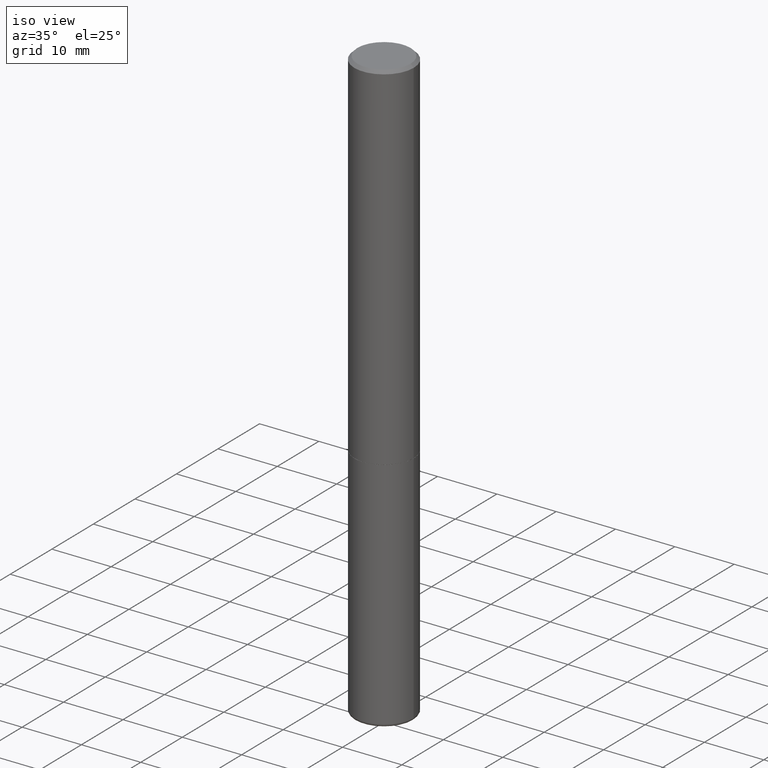
[diagram: clean part render]
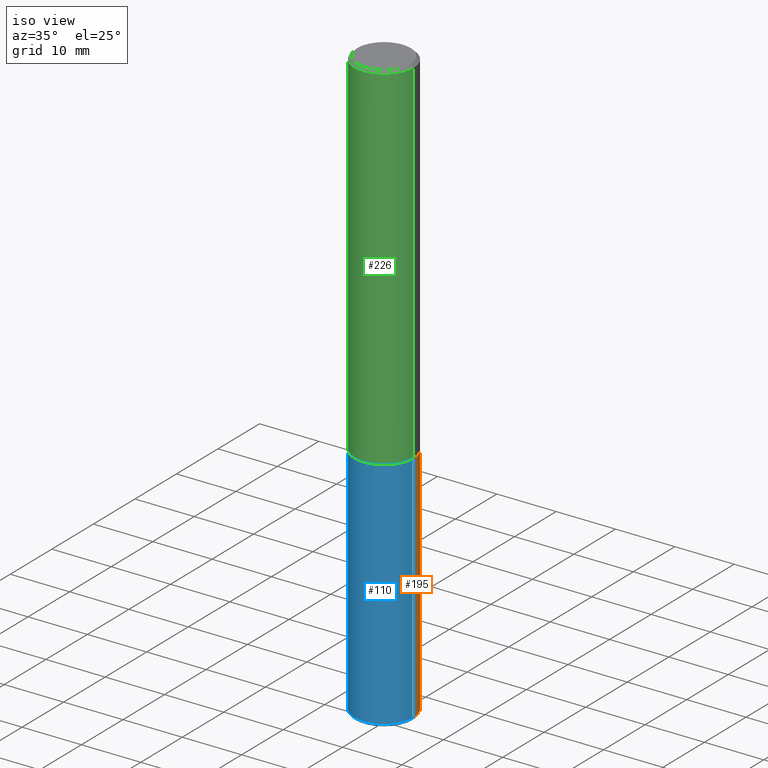
[diagram: same view with three faces highlighted in distinct colors, each labeled with its STEP entity id]
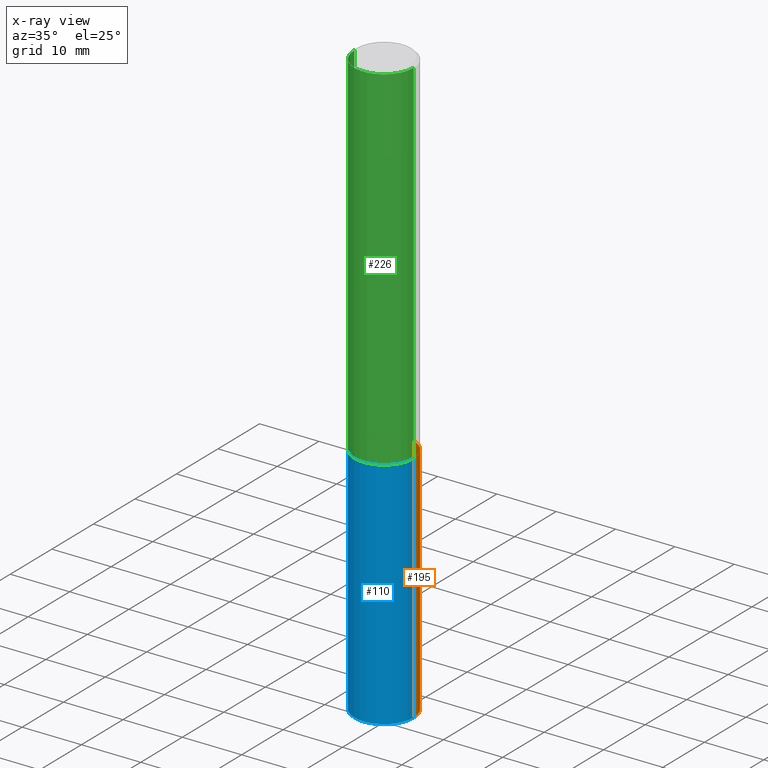
[diagram: x-ray of the same camera — body ghosted, the three highlighted faces saturated]
A machine part, iso view with three faces highlighted in distinct colors.
The next image is the same camera in x-ray (body ghosted, the three faces saturated) — at least one of them is partly hidden behind the body in this view.
Their STEP definitions:

[orange] entity #195 — the highlighted cylindrical surface (edge-blend (fillet) strip) has radius 5 mm, axis along (-0, 0, 1).
#12 = DIRECTION ( 'NONE',  ( 1.000000000000000000, -6.982962677686266711E-15, 4.876176775795935793E-29 ) ) ;
#17 = AXIS2_PLACEMENT_3D ( 'NONE', #104, #303, #12 ) ;
#32 = CARTESIAN_POINT ( 'NONE',  ( 9.579634954469036932E-29, -1.367717984865025539E-14, -3.917300000000000448 ) ) ;
#38 = DIRECTION ( 'NONE',  ( -2.445468806185136877E-29, 3.491481338843145188E-15, 1.000000000000000000 ) ) ;
#44 = CARTESIAN_POINT ( 'NONE',  ( -0.1968499999999999417, -1.227847647330649996E-14, -3.917300000000000448 ) ) ;
#53 = EDGE_CURVE ( 'NONE', #356, #417, #270, .T. ) ;
#71 = LINE ( 'NONE', #353, #186 ) ;
#80 = EDGE_LOOP ( 'NONE', ( #249, #224, #119, #325 ) ) ;
#85 = DIRECTION ( 'NONE',  ( 1.000000000000000000, -6.982962677686269866E-15, 0.000000000000000000 ) ) ;
#104 = CARTESIAN_POINT ( 'NONE',  ( 0.000000000000000000, 0.000000000000000000, 0.000000000000000000 ) ) ;
#119 = ORIENTED_EDGE ( 'NONE', *, *, #275, .F. ) ;
#126 = VECTOR ( 'NONE', #238, 39.37007874015748143 ) ;
#135 = CARTESIAN_POINT ( 'NONE',  ( 0.1968500000000000250, -9.622173421717819657E-15, -2.362199999999999633 ) ) ;
#145 = AXIS2_PLACEMENT_3D ( 'NONE', #32, #292, #85 ) ;
#149 = VERTEX_POINT ( 'NONE', #135 ) ;
#170 = CARTESIAN_POINT ( 'NONE',  ( -0.1968499999999999694, 1.398703375343756999E-15, -9.682923725166782276E-30 ) ) ;
#182 = EDGE_CURVE ( 'NONE', #417, #315, #300, .T. ) ;
#186 = VECTOR ( 'NONE', #38, 39.37007874015748143 ) ;
#195 = ADVANCED_FACE ( 'NONE', ( #274 ), #398, .T. ) ;
#224 = ORIENTED_EDGE ( 'NONE', *, *, #182, .T. ) ;
#238 = DIRECTION ( 'NONE',  ( -2.445468806185136877E-29, 3.491481338843145188E-15, 1.000000000000000000 ) ) ;
#249 = ORIENTED_EDGE ( 'NONE', *, *, #53, .T. ) ;
#258 = CARTESIAN_POINT ( 'NONE',  ( -0.1968500000000000250, -9.563675158289009718E-15, -2.362199999999999633 ) ) ;
#270 = CIRCLE ( 'NONE', #145, 0.1968499999999999694 ) ;
#273 = CARTESIAN_POINT ( 'NONE',  ( 5.776686413970529753E-29, -8.247577218615278049E-15, -2.362199999999999633 ) ) ;
#274 = FACE_OUTER_BOUND ( 'NONE', #80, .T. ) ;
#275 = EDGE_CURVE ( 'NONE', #149, #315, #385, .T. ) ;
#292 = DIRECTION ( 'NONE',  ( -2.445468806185136597E-29, 3.491481338843145583E-15, 1.000000000000000000 ) ) ;
#300 = LINE ( 'NONE', #170, #126 ) ;
#303 = DIRECTION ( 'NONE',  ( -2.445468806185136597E-29, 3.491481338843145583E-15, 1.000000000000000000 ) ) ;
#311 = EDGE_CURVE ( 'NONE', #356, #149, #71, .T. ) ;
#315 = VERTEX_POINT ( 'NONE', #258 ) ;
#325 = ORIENTED_EDGE ( 'NONE', *, *, #311, .F. ) ;
#334 = CARTESIAN_POINT ( 'NONE',  ( 0.1968499999999999417, -1.505177605175279857E-14, -3.917300000000000448 ) ) ;
#337 = DIRECTION ( 'NONE',  ( -2.445468806185136597E-29, 3.491481338843145583E-15, 1.000000000000000000 ) ) ;
#353 = CARTESIAN_POINT ( 'NONE',  ( 0.1968499999999999694, -1.374596203102541411E-15, 9.598753983154298056E-30 ) ) ;
#356 = VERTEX_POINT ( 'NONE', #334 ) ;
#385 = CIRCLE ( 'NONE', #407, 0.1968500000000000250 ) ;
#387 = DIRECTION ( 'NONE',  ( 1.000000000000000000, -6.982962677686262766E-15, 0.000000000000000000 ) ) ;
#398 = CYLINDRICAL_SURFACE ( 'NONE', #17, 0.1968499999999999694 ) ;
#407 = AXIS2_PLACEMENT_3D ( 'NONE', #273, #337, #387 ) ;
#417 = VERTEX_POINT ( 'NONE', #44 ) ;

[blue] entity #110 — the highlighted cylindrical surface (edge-blend (fillet) strip) has radius 5 mm, axis along (-0, 0, 1).
#10 = DIRECTION ( 'NONE',  ( 1.000000000000000000, -6.982962677686266711E-15, 4.876176775795935793E-29 ) ) ;
#31 = ORIENTED_EDGE ( 'NONE', *, *, #311, .T. ) ;
#38 = DIRECTION ( 'NONE',  ( -2.445468806185136877E-29, 3.491481338843145188E-15, 1.000000000000000000 ) ) ;
#44 = CARTESIAN_POINT ( 'NONE',  ( -0.1968499999999999417, -1.227847647330649996E-14, -3.917300000000000448 ) ) ;
#49 = ORIENTED_EDGE ( 'NONE', *, *, #313, .F. ) ;
#62 = CARTESIAN_POINT ( 'NONE',  ( 5.776686413970529753E-29, -8.247577218615278049E-15, -2.362199999999999633 ) ) ;
#66 = DIRECTION ( 'NONE',  ( -2.445468806185136597E-29, 3.491481338843145583E-15, 1.000000000000000000 ) ) ;
#67 = DIRECTION ( 'NONE',  ( 1.000000000000000000, -6.982962677686262766E-15, 0.000000000000000000 ) ) ;
#71 = LINE ( 'NONE', #353, #186 ) ;
#74 = DIRECTION ( 'NONE',  ( -2.445468806185136597E-29, 3.491481338843145583E-15, 1.000000000000000000 ) ) ;
#106 = CIRCLE ( 'NONE', #278, 0.1968499999999999694 ) ;
#110 = ADVANCED_FACE ( 'NONE', ( #365 ), #234, .T. ) ;
#126 = VECTOR ( 'NONE', #238, 39.37007874015748143 ) ;
#135 = CARTESIAN_POINT ( 'NONE',  ( 0.1968500000000000250, -9.622173421717819657E-15, -2.362199999999999633 ) ) ;
#149 = VERTEX_POINT ( 'NONE', #135 ) ;
#170 = CARTESIAN_POINT ( 'NONE',  ( -0.1968499999999999694, 1.398703375343756999E-15, -9.682923725166782276E-30 ) ) ;
#182 = EDGE_CURVE ( 'NONE', #417, #315, #300, .T. ) ;
#186 = VECTOR ( 'NONE', #38, 39.37007874015748143 ) ;
#196 = EDGE_CURVE ( 'NONE', #417, #356, #106, .T. ) ;
#211 = DIRECTION ( 'NONE',  ( 1.000000000000000000, -6.982962677686269866E-15, 0.000000000000000000 ) ) ;
#234 = CYLINDRICAL_SURFACE ( 'NONE', #305, 0.1968499999999999694 ) ;
#238 = DIRECTION ( 'NONE',  ( -2.445468806185136877E-29, 3.491481338843145188E-15, 1.000000000000000000 ) ) ;
#241 = CARTESIAN_POINT ( 'NONE',  ( 9.579634954469036932E-29, -1.367717984865025539E-14, -3.917300000000000448 ) ) ;
#246 = ORIENTED_EDGE ( 'NONE', *, *, #196, .T. ) ;
#258 = CARTESIAN_POINT ( 'NONE',  ( -0.1968500000000000250, -9.563675158289009718E-15, -2.362199999999999633 ) ) ;
#278 = AXIS2_PLACEMENT_3D ( 'NONE', #241, #74, #211 ) ;
#300 = LINE ( 'NONE', #170, #126 ) ;
#302 = DIRECTION ( 'NONE',  ( -2.445468806185136597E-29, 3.491481338843145583E-15, 1.000000000000000000 ) ) ;
#305 = AXIS2_PLACEMENT_3D ( 'NONE', #359, #66, #10 ) ;
#311 = EDGE_CURVE ( 'NONE', #356, #149, #71, .T. ) ;
#313 = EDGE_CURVE ( 'NONE', #315, #149, #318, .T. ) ;
#315 = VERTEX_POINT ( 'NONE', #258 ) ;
#318 = CIRCLE ( 'NONE', #335, 0.1968500000000000250 ) ;
#334 = CARTESIAN_POINT ( 'NONE',  ( 0.1968499999999999417, -1.505177605175279857E-14, -3.917300000000000448 ) ) ;
#335 = AXIS2_PLACEMENT_3D ( 'NONE', #62, #302, #67 ) ;
#346 = EDGE_LOOP ( 'NONE', ( #404, #246, #31, #49 ) ) ;
#353 = CARTESIAN_POINT ( 'NONE',  ( 0.1968499999999999694, -1.374596203102541411E-15, 9.598753983154298056E-30 ) ) ;
#356 = VERTEX_POINT ( 'NONE', #334 ) ;
#359 = CARTESIAN_POINT ( 'NONE',  ( 0.000000000000000000, 0.000000000000000000, 0.000000000000000000 ) ) ;
#365 = FACE_OUTER_BOUND ( 'NONE', #346, .T. ) ;
#404 = ORIENTED_EDGE ( 'NONE', *, *, #182, .F. ) ;
#417 = VERTEX_POINT ( 'NONE', #44 ) ;

[green] entity #226 — the highlighted cylindrical surface (edge-blend (fillet) strip) has radius 5 mm, axis along (-0, 0, 1).
#7 = CARTESIAN_POINT ( 'NONE',  ( 4.890937612370283668E-31, -6.982962677686305168E-17, -0.02000000000000004205 ) ) ;
#20 = CIRCLE ( 'NONE', #70, 0.1968500000000000527 ) ;
#45 = VERTEX_POINT ( 'NONE', #228 ) ;
#55 = ORIENTED_EDGE ( 'NONE', *, *, #399, .T. ) ;
#60 = ORIENTED_EDGE ( 'NONE', *, *, #245, .F. ) ;
#65 = CARTESIAN_POINT ( 'NONE',  ( 0.1968500000000000527, -1.420318657638189516E-15, -0.02000000000000004205 ) ) ;
#70 = AXIS2_PLACEMENT_3D ( 'NONE', #7, #204, #386 ) ;
#95 = FACE_OUTER_BOUND ( 'NONE', #111, .T. ) ;
#100 = LINE ( 'NONE', #327, #155 ) ;
#108 = DIRECTION ( 'NONE',  ( -2.445468806185136877E-29, 3.491481338843145188E-15, 1.000000000000000000 ) ) ;
#111 = EDGE_LOOP ( 'NONE', ( #60, #55, #157, #408 ) ) ;
#133 = CARTESIAN_POINT ( 'NONE',  ( 0.000000000000000000, 0.000000000000000000, 0.000000000000000000 ) ) ;
#155 = VECTOR ( 'NONE', #358, 39.37007874015748143 ) ;
#157 = ORIENTED_EDGE ( 'NONE', *, *, #355, .T. ) ;
#164 = AXIS2_PLACEMENT_3D ( 'NONE', #133, #265, #389 ) ;
#178 = CARTESIAN_POINT ( 'NONE',  ( 5.774240945164344150E-29, -8.244085737276433464E-15, -2.361199999999999743 ) ) ;
#179 = VECTOR ( 'NONE', #108, 39.37007874015748143 ) ;
#190 = VERTEX_POINT ( 'NONE', #338 ) ;
#191 = AXIS2_PLACEMENT_3D ( 'NONE', #178, #276, #372 ) ;
#204 = DIRECTION ( 'NONE',  ( -2.445468806185136597E-29, 3.491481338843145583E-15, 1.000000000000000000 ) ) ;
#213 = EDGE_CURVE ( 'NONE', #252, #350, #20, .T. ) ;
#226 = ADVANCED_FACE ( 'NONE', ( #95 ), #332, .T. ) ;
#228 = CARTESIAN_POINT ( 'NONE',  ( -0.1968500000000002748, -2.758254306682887043E-15, -2.361199999999999743 ) ) ;
#245 = EDGE_CURVE ( 'NONE', #45, #252, #336, .T. ) ;
#252 = VERTEX_POINT ( 'NONE', #403 ) ;
#265 = DIRECTION ( 'NONE',  ( -2.445468806185136597E-29, 3.491481338843145583E-15, 1.000000000000000000 ) ) ;
#271 = CIRCLE ( 'NONE', #191, 0.1968500000000002748 ) ;
#276 = DIRECTION ( 'NONE',  ( -2.445468806185136597E-29, 3.491481338843145583E-15, 1.000000000000000000 ) ) ;
#327 = CARTESIAN_POINT ( 'NONE',  ( 0.1968500000000001915, -1.374596203102542989E-15, 9.598753983154309266E-30 ) ) ;
#332 = CYLINDRICAL_SURFACE ( 'NONE', #164, 0.1968500000000001915 ) ;
#336 = LINE ( 'NONE', #368, #179 ) ;
#338 = CARTESIAN_POINT ( 'NONE',  ( 0.1968500000000002748, -9.618681940378978228E-15, -2.361199999999999743 ) ) ;
#350 = VERTEX_POINT ( 'NONE', #65 ) ;
#355 = EDGE_CURVE ( 'NONE', #190, #350, #100, .T. ) ;
#358 = DIRECTION ( 'NONE',  ( -2.445468806185136877E-29, 3.491481338843145188E-15, 1.000000000000000000 ) ) ;
#368 = CARTESIAN_POINT ( 'NONE',  ( -0.1968500000000001915, 1.398703375343758577E-15, -9.682923725166790684E-30 ) ) ;
#372 = DIRECTION ( 'NONE',  ( 1.000000000000000000, -6.982962677686269077E-15, 0.000000000000000000 ) ) ;
#386 = DIRECTION ( 'NONE',  ( 1.000000000000000000, -6.982962677686266711E-15, 0.000000000000000000 ) ) ;
#389 = DIRECTION ( 'NONE',  ( 1.000000000000000000, -6.982962677686266711E-15, 4.876176775795935793E-29 ) ) ;
#399 = EDGE_CURVE ( 'NONE', #45, #190, #271, .T. ) ;
#403 = CARTESIAN_POINT ( 'NONE',  ( -0.1968500000000000527, 1.304766576325678902E-15, -0.02000000000000004205 ) ) ;
#408 = ORIENTED_EDGE ( 'NONE', *, *, #213, .F. ) ;